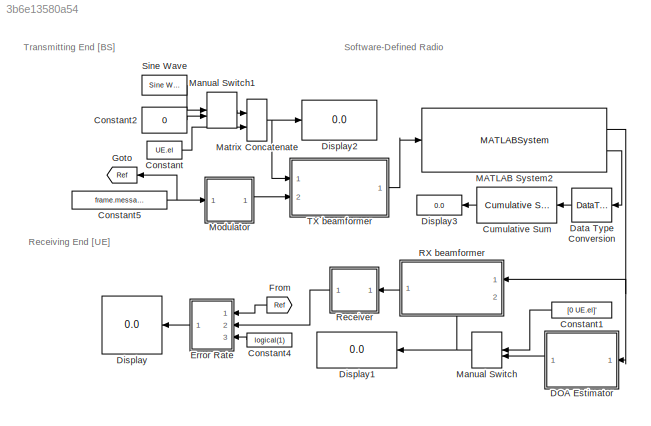
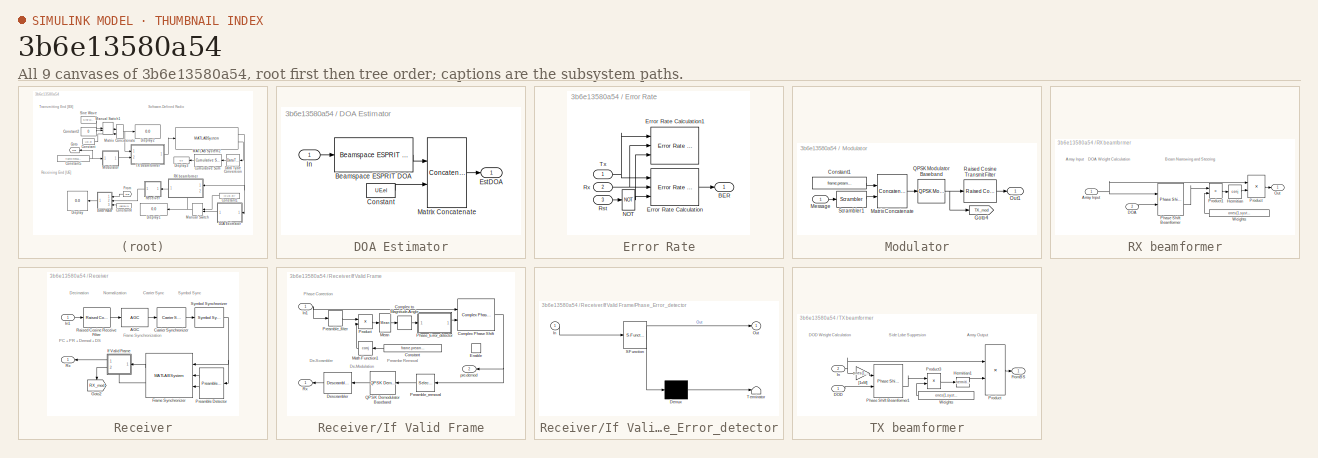
[diagram: thumbnail index - all 9 canvases of the model, root first then tree order]
MODEL slx_3b6e13580a54
KIND model
CONFIG AbsTol = auto
CONFIG EnableMultiTasking = off
CONFIG FixedStep = auto
CONFIG MaxStep = auto
CONFIG MinStep = auto
CONFIG RelTol = 1e-3
CONFIG SampleTimeConstraint = Unconstrained
CONFIG SolverName = VariableStepAuto
CONFIG StartTime = 0.0
CONFIG StopTime = 30
BLOCK [Constant] Constant
  Value = UE.el
BLOCK [Constant] Constant1
  Value = [0 UE.el]'
BLOCK [Constant] Constant2
  Value = 0
BLOCK [Constant] Constant4
  Value = logical(1)
BLOCK [Constant] Constant5
  SampleTime = system.step
  Value = frame.message.bits
BLOCK [Reference] Cumulative Sum  REF=dspmathops/Cumulative
Sum
  Ports = [1, 1]
  SourceBlock = dspmathops/Cumulative\nSum
  SourceProductBaseCode = DS
  SourceType = Cumulative Sum
  UserDataPersistent = on
BLOCK [SubSystem] DOA Estimator
  Ports = [1, 1]
  RequestExecContextInheritance = off
BLOCK [Reference] DOA Estimator/Beamspace ESPRIT DOA  REF=phaseddoalib/Beamspace ESPRIT
DOA
  Ports = [1, 1]
  SourceBlock = phaseddoalib/Beamspace ESPRIT\nDOA
  SourceProductBaseCode = AR
  SourceType = phased.BeamspaceESPRITEstimator
BLOCK [Constant] DOA Estimator/Constant
  Value = UE.el
BLOCK [Outport] DOA Estimator/EstDOA
BLOCK [Inport] DOA Estimator/In
BLOCK [Concatenate] DOA Estimator/Matrix Concatenate
  Mode = Multidimensional array
  Ports = [2, 1]
BLOCK [DataTypeConversion] Data Type Conversion
  RndMeth = Floor
  SaturateOnIntegerOverflow = off
BLOCK [Display] Display
  Decimation = 1
  Ports = [1]
BLOCK [Display] Display1
  Decimation = 1
  Ports = [1]
BLOCK [Display] Display2
  Decimation = 1
  Ports = [1]
BLOCK [Display] Display3
  Decimation = 1
  Ports = [1]
BLOCK [SubSystem] Error Rate
  NameLocation = top
  Ports = [3, 1]
  RequestExecContextInheritance = off
BLOCK [Outport] Error Rate/BER
BLOCK [Reference] Error Rate/Error Rate Calculation  REF=commsink2/Error Rate
Calculation
  Ports = [3, 1]
  SourceBlock = commsink2/Error Rate\nCalculation
  SourceProductBaseCode = CM
  SourceType = Error Rate Calculation
BLOCK [Reference] Error Rate/Error Rate Calculation1  REF=commsink2/Error Rate
Calculation
  Ports = [3]
  SourceBlock = commsink2/Error Rate\nCalculation
  SourceProductBaseCode = CM
  SourceType = Error Rate Calculation
BLOCK [Logic] Error Rate/NOT
  AllPortsSameDT = off
  IconShape = distinctive
  Operator = NOT
  OutDataTypeStr = boolean
  Ports = [1, 1]
BLOCK [Inport] Error Rate/Rst
  NameLocation = left
  Port = 3
BLOCK [Inport] Error Rate/Rx
  NameLocation = left
  Port = 2
BLOCK [Inport] Error Rate/Tx
  NameLocation = left
BLOCK [From] From
  GotoTag = Ref
  NameLocation = top
BLOCK [Goto] Goto
  GotoTag = Ref
BLOCK [MATLABSystem] MATLAB System2
  MaskDisplay = disp(['Nuand' char(10) 'bladeRF 2.0' char(10) 'MIMO']);\nport_label('input',1,'TX Samples');\nport_label('output',1,'RX Samples');\nport_label('output',2,'RX Overrun');
  MaskType = bladeRF_MIMO_Simulink
  Ports = [1, 2]
  SimulateUsing = Interpreted execution
  System = bladeRF_MIMO_Simulink
  enable_overrun = on
  enable_rx = on
  enable_rx_biastee = off
  enable_tx = on
  enable_tx_biastee = off
  enable_underrun = off
  loopback_mode = None
  rx_agc = MANUAL
  rx_bandwidth = 1.5
  rx_buf_size = SDR.stream.buffer_size
  rx_frequency = system.freq
  rx_gain = SDR.rx_gain
  rx_num_buffers = SDR.stream.n_buffers
  rx_num_transfers = SDR.stream.n_transfers
  rx_samplerate = SDR.samplerate
  rx_step_size = system.samples_per_step
  rx_timeout_ms = SDR.stream.timeout
  tx_bandwidth = 1.5
  tx_buf_size = SDR.stream.buffer_size
  tx_frequency = system.freq
  tx_gain = SDR.tx_gain
  tx_num_buffers = SDR.stream.n_buffers
  tx_num_transfers = SDR.stream.n_transfers
  tx_samplerate = SDR.samplerate
  tx_step_size = system.samples_per_step
  tx_timeout_ms = SDR.stream.timeout
  verbosity = Verbose
  xb200 = off
BLOCK [ManualSwitch] Manual Switch
  CurrentSetting = 0
BLOCK [ManualSwitch] Manual Switch1
  CurrentSetting = 0
BLOCK [Concatenate] Matrix Concatenate
  Mode = Multidimensional array
  Ports = [2, 1]
BLOCK [SubSystem] Modulator
  NameLocation = top
  Ports = [1, 1]
  RequestExecContextInheritance = off
BLOCK [Constant] Modulator/Constant1
  SampleTime = system.step
  Value = frame.preamble.bits
BLOCK [Goto] Modulator/Goto4
  GotoTag = TX_mod
  TagVisibility = global
BLOCK [Concatenate] Modulator/Matrix Concatenate
  Mode = Multidimensional array
  Ports = [2, 1]
BLOCK [Inport] Modulator/Message
BLOCK [Outport] Modulator/Out1
BLOCK [Reference] Modulator/QPSK Modulator Baseband  REF=commdigbbndpm3/QPSK
Modulator
Baseband
  Ports = [1, 1]
  SourceBlock = commdigbbndpm3/QPSK\nModulator\nBaseband
  SourceProductBaseCode = CM
  SourceType = QPSK Modulator Baseband
BLOCK [Reference] Modulator/Raised Cosine Transmit Filter  REF=commfilt2/Raised Cosine
Transmit Filter
  Ports = [1, 1]
  SourceBlock = commfilt2/Raised Cosine\nTransmit Filter
  SourceProductBaseCode = CM
  SourceType = Raised Cosine Transmit Filter
BLOCK [Reference] Modulator/Scrambler1  REF=commsequence2/Scrambler
  Ports = [1, 1]
  SourceBlock = commsequence2/Scrambler
  SourceProductBaseCode = CM
  SourceType = Scrambler
BLOCK [SubSystem] RX beamformer
  NameLocation = top
  PortSchema = {"entries":[{"content":{"sides":[{"content":{"connectorIds":["In1"]},"type":"ConnectorPlacement.EquallySpacedRectSide","uuid":"da6b99b9-07c1-40ec-94f6-5f8421c86696"},{"content":{"connectorIds":["Out1"],"side":"RIGHT"},"type":"ConnectorPlacement.EquallySpacedRectSide","uuid":"d1696111-4bb2-4715-9875-a9a0a5fdf0a8"},{"content":{"connectorIds":[],"side":"TOP"},"type":"ConnectorPlacement.EquallySpacedR...<+391ch>
  Ports = [2, 1]
  RequestExecContextInheritance = off
BLOCK [Inport] RX beamformer/Array Input
  NameLocation = top
BLOCK [Inport] RX beamformer/DOA
  NameLocation = top
  Port = 2
BLOCK [Math] RX beamformer/Hermitian
  Operator = conj
  Ports = [1, 1]
BLOCK [Outport] RX beamformer/Out
BLOCK [Reference] RX beamformer/Phase Shift Beamformer  REF=phasedbflib/Phase Shift Beamformer
  Ports = [2, 2]
  SourceBlock = phasedbflib/Phase Shift Beamformer
  SourceProductBaseCode = AR
  SourceType = phased.PhaseShiftBeamformer
BLOCK [Product] RX beamformer/Product
  Multiplication = Matrix(*)
  Ports = [2, 1]
BLOCK [Product] RX beamformer/Product1
  Ports = [2, 1]
BLOCK [Constant] RX beamformer/Weights
  Value = ones(1,system.n_antennas)
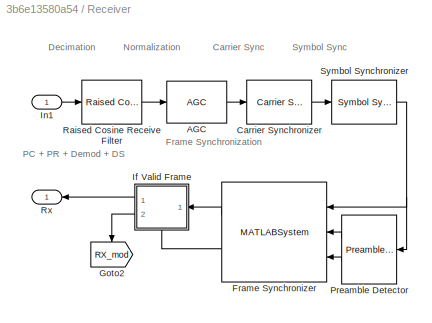
BLOCK [SubSystem] Receiver
  Ports = [1, 1]
  RequestExecContextInheritance = off
BLOCK [Reference] Receiver/AGC  REF=commrfcorlib/AGC
  Ports = [1, 1]
  SourceBlock = commrfcorlib/AGC
  SourceProductBaseCode = CM
  SourceType = AGC
BLOCK [Reference] Receiver/Carrier Synchronizer  REF=commsync2/Carrier Synchronizer
  Ports = [1, 1]
  SourceBlock = commsync2/Carrier Synchronizer
  SourceProductBaseCode = CM
  SourceType = Carrier Synchronizer
BLOCK [MATLABSystem] Receiver/Frame Synchronizer
  Input = Symbol
  MaskDisplay = disp(['Frame' char(10) 'Synchronizer']);\nport_label('input',1,'u');\nport_label('input',2,'idx');\nport_label('input',3,'dtMt');\nport_label('output',1,'Frame');\nport_label('output',2,'Valid');
  MaskType = comm.internal.examples.FrameSynchronizer
  OutputFrameLength = system.rx.fs.frame_length
  Ports = [3, 2]
  PreambleLength = system.rx.fs.preamble_length
  SimulateUsing = Code generation
  System = comm.internal.examples.FrameSynchronizer
BLOCK [Goto] Receiver/Goto2
  GotoTag = RX_mod
  NameLocation = left
  TagVisibility = global
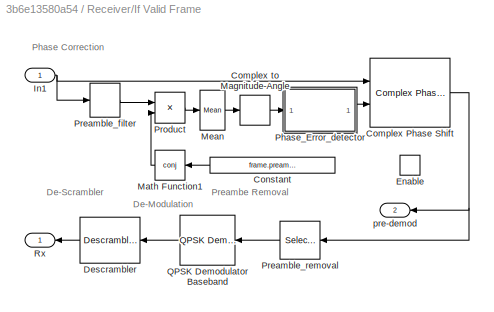
BLOCK [SubSystem] Receiver/If Valid Frame
  NameLocation = top
  Ports = [1, 2, 1]
  RequestExecContextInheritance = off
  TreatAsAtomicUnit = on
BLOCK [Reference] Receiver/If Valid Frame/Complex Phase Shift  REF=commutil2/Complex Phase
Shift
  Ports = [2, 1]
  SourceBlock = commutil2/Complex Phase\nShift
  SourceProductBaseCode = CM
  SourceType = Complex Phase Shift
BLOCK [ComplexToMagnitudeAngle] Receiver/If Valid Frame/Complex to Magnitude-Angle
  Output = Angle
  Ports = [1, 1]
BLOCK [Constant] Receiver/If Valid Frame/Constant
  Value = frame.preamble.symbols
BLOCK [Reference] Receiver/If Valid Frame/Descrambler  REF=commsequence2/Descrambler
  Ports = [1, 1]
  SourceBlock = commsequence2/Descrambler
  SourceProductBaseCode = CM
  SourceType = Descrambler
BLOCK [EnablePort] Receiver/If Valid Frame/Enable
  Ports = []
BLOCK [Inport] Receiver/If Valid Frame/In1
BLOCK [Math] Receiver/If Valid Frame/Math Function1
  Operator = conj
  Ports = [1, 1]
  SignedPower = on
BLOCK [Reference] Receiver/If Valid Frame/Mean  REF=dspstat3/Mean
  Ports = [1, 1]
  SourceBlock = dspstat3/Mean
  SourceProductBaseCode = DS
  SourceType = Mean
  UserDataPersistent = on
BLOCK [SubSystem] Receiver/If Valid Frame/Phase_Error_detector
  ErrorFcn = Stateflow.Translate.translate
  PermitHierarchicalResolution = ExplicitOnly
  Ports = [1, 1]
  RequestExecContextInheritance = off
  SFBlockType = MATLAB Function
  TreatAsAtomicUnit = on
BLOCK [Demux] Receiver/If Valid Frame/Phase_Error_detector/ Demux 
  Outputs = 1
  Ports = [1, 1]
BLOCK [S-Function] Receiver/If Valid Frame/Phase_Error_detector/ SFunction 
  EnableBusSupport = on
  FunctionName = sf_sfun
  PortCounts = [1 2]
  Ports = [1, 2]
  SFcnIsStateOwnerBlock = off
  SFunctionDeploymentMode = off
  Tag = Stateflow S-Function 2
BLOCK [Terminator] Receiver/If Valid Frame/Phase_Error_detector/ Terminator 
BLOCK [Inport] Receiver/If Valid Frame/Phase_Error_detector/In
BLOCK [Outport] Receiver/If Valid Frame/Phase_Error_detector/Out
  VectorParamsAs1DForOutWhenUnconnected = off
BLOCK [Selector] Receiver/If Valid Frame/Preamble_filter
  IndexOptions = Index vector (dialog)
  Indices = 1:length(frame.preamble.symbols)
  InputPortWidth = length(frame.symbols)
  OutputSizes = 1
  Ports = [1, 1]
BLOCK [Selector] Receiver/If Valid Frame/Preamble_removal
  IndexOptions = Index vector (dialog)
  Indices = (length(frame.preamble.symbols)+1):length(frame.symbols)
  InputPortWidth = length(frame.symbols)
  OutputSizes = 1
  Ports = [1, 1]
BLOCK [Product] Receiver/If Valid Frame/Product
  Ports = [2, 1]
  RndMeth = Zero
BLOCK [Reference] Receiver/If Valid Frame/QPSK Demodulator Baseband  REF=commdigbbndpm3/QPSK
Demodulator
Baseband
  Ports = [1, 1]
  SourceBlock = commdigbbndpm3/QPSK\nDemodulator\nBaseband
  SourceProductBaseCode = CM
  SourceType = QPSK Demodulator Baseband
BLOCK [Outport] Receiver/If Valid Frame/Rx
BLOCK [Outport] Receiver/If Valid Frame/pre-demod
  Port = 2
BLOCK [Inport] Receiver/In1
BLOCK [Reference] Receiver/Preamble Detector  REF=commsync2/Preamble Detector
  Ports = [1, 2]
  SourceBlock = commsync2/Preamble Detector
  SourceProductBaseCode = CM
  SourceType = Preamble Detector
BLOCK [Reference] Receiver/Raised Cosine Receive Filter  REF=commfilt2/Raised Cosine
Receive Filter
  Ports = [1, 1]
  SourceBlock = commfilt2/Raised Cosine\nReceive Filter
  SourceProductBaseCode = CM
  SourceType = Raised Cosine Receive Filter
  UserDataPersistent = on
BLOCK [Outport] Receiver/Rx
  NameLocation = top
BLOCK [Reference] Receiver/Symbol Synchronizer  REF=commsync2/Symbol Synchronizer
  Ports = [1, 1]
  SourceBlock = commsync2/Symbol Synchronizer
  SourceProductBaseCode = CM
  SourceType = Symbol Synchronizer
BLOCK [Reference] Sine Wave  REF=dspsrcs4/Sine Wave
  Ports = [0, 1]
  SourceBlock = dspsrcs4/Sine Wave
  SourceProductBaseCode = DS
  SourceType = Sine Wave
BLOCK [SubSystem] TX beamformer
  Ports = [2, 1]
  RequestExecContextInheritance = off
BLOCK [Inport] TX beamformer/DOD
BLOCK [Outport] TX beamformer/FromBS
BLOCK [Math] TX beamformer/Hermitian1
  Operator = hermitian
  Ports = [1, 1]
BLOCK [Inport] TX beamformer/In
  Port = 2
BLOCK [Reference] TX beamformer/Phase Shift Beamformer1  REF=phasedbflib/Phase Shift Beamformer
  Ports = [2, 2]
  SourceBlock = phasedbflib/Phase Shift Beamformer
  SourceProductBaseCode = AR
  SourceType = phased.PhaseShiftBeamformer
BLOCK [Product] TX beamformer/Product
  Multiplication = Matrix(*)
  Ports = [2, 1]
BLOCK [Product] TX beamformer/Product3
  Ports = [2, 1]
BLOCK [Constant] TX beamformer/Weights
  SampleTime = system.step
  Value = ones(1,system.n_antennas)
BLOCK [Gain] TX beamformer/[1xM]
  Gain = ones(1,system.n_antennas)
  Multiplication = Matrix(u*K)
ANNOTATION (root): Receiving End [UE]
ANNOTATION (root): Software-Defined Radio
ANNOTATION (root): Transmitting End [BS]
ANNOTATION RX beamformer: Array Input
ANNOTATION RX beamformer: Beam Narrowing and Steering
ANNOTATION RX beamformer: DOA Weight Calculation
ANNOTATION Receiver: Carrier Sync
ANNOTATION Receiver: Decimation
ANNOTATION Receiver: Frame Synchronization
ANNOTATION Receiver: Normalization
ANNOTATION Receiver: PC + PR + Demod + DS
ANNOTATION Receiver: Symbol Sync
ANNOTATION Receiver/If Valid Frame: De-Modulation
ANNOTATION Receiver/If Valid Frame: De-Scrambler
ANNOTATION Receiver/If Valid Frame: Phase Correction
ANNOTATION Receiver/If Valid Frame: Preambe Removal
ANNOTATION TX beamformer: Array Output
ANNOTATION TX beamformer: DOD Weight Calculation
ANNOTATION TX beamformer: Side Lobe Suppresion
LINE Constant1:1 -> Manual Switch:1
LINE Constant2:1 -> Manual Switch1:2
LINE Constant4:1 -> Error Rate:3
NET Constant5:1 -> Goto:1, Modulator:1
LINE Constant:1 -> Matrix Concatenate:2
LINE Cumulative Sum:1 -> Display3:1
LINE DOA Estimator/Beamspace ESPRIT DOA:1 -> DOA Estimator/Matrix Concatenate:1
LINE DOA Estimator/Constant:1 -> DOA Estimator/Matrix Concatenate:2
LINE DOA Estimator/In:1 -> DOA Estimator/Beamspace ESPRIT DOA:1
LINE DOA Estimator/Matrix Concatenate:1 -> DOA Estimator/EstDOA:1
LINE DOA Estimator:1 -> Manual Switch:2
LINE Data Type Conversion:1 -> Cumulative Sum:1
LINE Error Rate/Error Rate Calculation:1 -> Error Rate/BER:1
NET Error Rate/NOT:1 -> Error Rate/Error Rate Calculation1:3, Error Rate/Error Rate Calculation:3
LINE Error Rate/Rst:1 -> Error Rate/NOT:1
NET Error Rate/Rx:1 -> Error Rate/Error Rate Calculation1:2, Error Rate/Error Rate Calculation:2
NET Error Rate/Tx:1 -> Error Rate/Error Rate Calculation1:1, Error Rate/Error Rate Calculation:1
LINE Error Rate:1 -> Display:1
LINE From:1 -> Error Rate:1
NET MATLAB System2:1 -> DOA Estimator:1, RX beamformer:1
LINE MATLAB System2:2 -> Data Type Conversion:1
LINE Manual Switch1:1 -> Matrix Concatenate:1
NET Manual Switch:1 -> Display1:1, RX beamformer:2
NET Matrix Concatenate:1 -> Display2:1, TX beamformer:1
LINE Modulator/Constant1:1 -> Modulator/Matrix Concatenate:1
LINE Modulator/Matrix Concatenate:1 -> Modulator/QPSK Modulator Baseband:1
LINE Modulator/Message:1 -> Modulator/Scrambler1:1
NET Modulator/QPSK Modulator Baseband:1 -> Modulator/Goto4:1, Modulator/Raised Cosine Transmit Filter:1
LINE Modulator/Raised Cosine Transmit Filter:1 -> Modulator/Out1:1
LINE Modulator/Scrambler1:1 -> Modulator/Matrix Concatenate:2
LINE Modulator:1 -> TX beamformer:2
NET RX beamformer/Array Input:1 -> RX beamformer/Phase Shift Beamformer:1, RX beamformer/Product:1
LINE RX beamformer/DOA:1 -> RX beamformer/Phase Shift Beamformer:2
LINE RX beamformer/Hermitian:1 -> RX beamformer/Product:2
LINE RX beamformer/Phase Shift Beamformer:2 -> RX beamformer/Product1:1
LINE RX beamformer/Product1:1 -> RX beamformer/Hermitian:1
LINE RX beamformer/Product:1 -> RX beamformer/Out:1
LINE RX beamformer/Weights:1 -> RX beamformer/Product1:2
LINE RX beamformer:1 -> Receiver:1
LINE Receiver/AGC:1 -> Receiver/Carrier Synchronizer:1
LINE Receiver/Carrier Synchronizer:1 -> Receiver/Symbol Synchronizer:1
LINE Receiver/Frame Synchronizer:1 -> Receiver/If Valid Frame:1
LINE Receiver/Frame Synchronizer:2 -> Receiver/If Valid Frame:enable
NET Receiver/If Valid Frame/Complex Phase Shift:1 -> Receiver/If Valid Frame/Preamble_removal:1, Receiver/If Valid Frame/pre-demod:1
LINE Receiver/If Valid Frame/Complex to Magnitude-Angle:1 -> Receiver/If Valid Frame/Phase_Error_detector:1
LINE Receiver/If Valid Frame/Constant:1 -> Receiver/If Valid Frame/Math Function1:1
LINE Receiver/If Valid Frame/Descrambler:1 -> Receiver/If Valid Frame/Rx:1
NET Receiver/If Valid Frame/In1:1 -> Receiver/If Valid Frame/Complex Phase Shift:1, Receiver/If Valid Frame/Preamble_filter:1
LINE Receiver/If Valid Frame/Math Function1:1 -> Receiver/If Valid Frame/Product:2
LINE Receiver/If Valid Frame/Mean:1 -> Receiver/If Valid Frame/Complex to Magnitude-Angle:1
LINE Receiver/If Valid Frame/Phase_Error_detector:1 -> Receiver/If Valid Frame/Complex Phase Shift:2
LINE Receiver/If Valid Frame/Preamble_filter:1 -> Receiver/If Valid Frame/Product:1
LINE Receiver/If Valid Frame/Preamble_removal:1 -> Receiver/If Valid Frame/QPSK Demodulator Baseband:1
LINE Receiver/If Valid Frame/Product:1 -> Receiver/If Valid Frame/Mean:1
LINE Receiver/If Valid Frame/QPSK Demodulator Baseband:1 -> Receiver/If Valid Frame/Descrambler:1
LINE Receiver/If Valid Frame:1 -> Receiver/Rx:1
LINE Receiver/If Valid Frame:2 -> Receiver/Goto2:1
LINE Receiver/In1:1 -> Receiver/Raised Cosine Receive Filter:1
LINE Receiver/Preamble Detector:1 -> Receiver/Frame Synchronizer:2
LINE Receiver/Preamble Detector:2 -> Receiver/Frame Synchronizer:3
LINE Receiver/Raised Cosine Receive Filter:1 -> Receiver/AGC:1
NET Receiver/Symbol Synchronizer:1 -> Receiver/Frame Synchronizer:1, Receiver/Preamble Detector:1
LINE Receiver:1 -> Error Rate:2
LINE Sine Wave:1 -> Manual Switch1:1
LINE TX beamformer/DOD:1 -> TX beamformer/Phase Shift Beamformer1:2
LINE TX beamformer/Hermitian1:1 -> TX beamformer/Product:2
NET TX beamformer/In:1 -> TX beamformer/Product:1, TX beamformer/[1xM]:1
LINE TX beamformer/Phase Shift Beamformer1:2 -> TX beamformer/Product3:1
LINE TX beamformer/Product3:1 -> TX beamformer/Hermitian1:1
LINE TX beamformer/Product:1 -> TX beamformer/FromBS:1
LINE TX beamformer/Weights:1 -> TX beamformer/Product3:2
LINE TX beamformer/[1xM]:1 -> TX beamformer/Phase Shift Beamformer1:1
LINE TX beamformer:1 -> MATLAB System2:1
note: NET lines group one-source signal fan-out (src -> all destinations, sorted); 1:1 wires keep LINE
CHART Receiver/If Valid Frame/Phase_Error_detector states=1 transitions=1
  STATE_LABEL 'eML_blk_kernel()'
  STATE_LABEL 'SCRIPT:\nfunction Out = phasedecision(In)\n% Map the estimated phase to one of -pi, -pi/2, 0, pi/2,  \n%#codegen\nOut = -round(In.*2./pi)./2.*pi;\n% The above processing is equivalent to the following processing using\n% if/else statements\n%\n% if In<pi/4 && In>-pi/4\n%     Out = 0;\n% elseif In>=pi/4 && In<pi*3/4\n%     Out = pi/2;\n% elseif In>=pi*3/4 || In<=-pi*3/4\n%     Out = -pi;\n% else\n%     Out = -pi/...<+11ch>'
CHART  states=0 transitions=0
